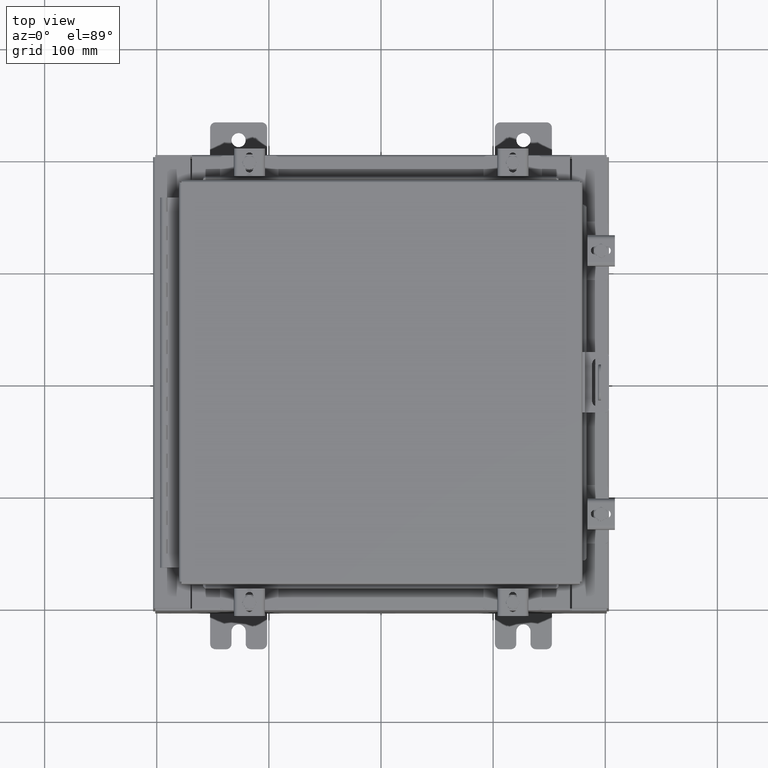
[diagram: clean part render]
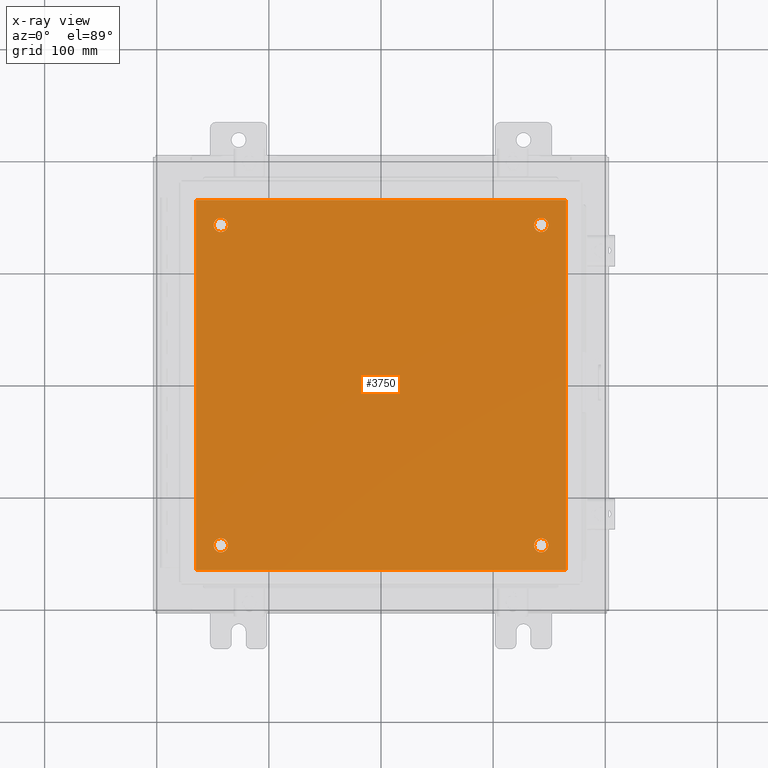
[diagram: x-ray — body ghosted, one internal face saturated and labeled with its STEP entity id]
A machine part, top view, then the same camera in x-ray: the body is ghosted and one INTERNAL B-rep face — a face not visible from any outside direction — is saturated and labeled: STEP entity #3750.
In plain terms, the highlighted planar face has unit normal (0, 0, -1).
Its self-contained STEP definition (entity closure, byte-faithful):
#249 = VECTOR ( 'NONE', #3048, 39.37007874015748100 ) ;
#473 = DIRECTION ( 'NONE',  ( -1.000000000000000000, 0.0000000000000000000, -0.0000000000000000000 ) ) ;
#474 = VECTOR ( 'NONE', #18459, 39.37007874015748100 ) ;
#612 = EDGE_LOOP ( 'NONE', ( #11835, #4664 ) ) ;
#912 = LINE ( 'NONE', #15066, #249 ) ;
#938 = CARTESIAN_POINT ( 'NONE',  ( -6.500000000000000000, -6.499999999999999100, -0.1039999999999999800 ) ) ;
#1072 = VERTEX_POINT ( 'NONE', #14655 ) ;
#1291 = EDGE_CURVE ( 'NONE', #19628, #23559, #19539, .T. ) ;
#1316 = DIRECTION ( 'NONE',  ( -0.0000000000000000000, -0.0000000000000000000, 1.000000000000000000 ) ) ;
#2065 = DIRECTION ( 'NONE',  ( -0.0000000000000000000, -0.0000000000000000000, 1.000000000000000000 ) ) ;
#2469 = DIRECTION ( 'NONE',  ( -0.0000000000000000000, -0.0000000000000000000, 1.000000000000000000 ) ) ;
#2476 = CARTESIAN_POINT ( 'NONE',  ( 5.625000000000002700, 5.625000000000000900, -0.1039999999999999800 ) ) ;
#2577 = CARTESIAN_POINT ( 'NONE',  ( 6.500000000000000000, -6.499999999999999100, -0.1039999999999999800 ) ) ;
#3048 = DIRECTION ( 'NONE',  ( 0.0000000000000000000, 1.000000000000000000, 0.0000000000000000000 ) ) ;
#3142 = AXIS2_PLACEMENT_3D ( 'NONE', #8850, #22898, #10863 ) ;
#3515 = CARTESIAN_POINT ( 'NONE',  ( 6.500000000000000000, 6.500000000000000900, -0.1039999999999999800 ) ) ;
#3750 = ADVANCED_FACE ( 'NONE', ( #24158, #8115, #23542, #9404, #12821 ), #8250, .T. ) ;
#4082 = EDGE_CURVE ( 'NONE', #4590, #19476, #21277, .T. ) ;
#4408 = DIRECTION ( 'NONE',  ( -0.0000000000000000000, -0.0000000000000000000, 1.000000000000000000 ) ) ;
#4481 = AXIS2_PLACEMENT_3D ( 'NONE', #11316, #14797, #17770 ) ;
#4492 = DIRECTION ( 'NONE',  ( -1.000000000000000000, 0.0000000000000000000, 0.0000000000000000000 ) ) ;
#4565 = AXIS2_PLACEMENT_3D ( 'NONE', #14080, #2065, #16075 ) ;
#4590 = VERTEX_POINT ( 'NONE', #6458 ) ;
#4664 = ORIENTED_EDGE ( 'NONE', *, *, #12536, .T. ) ;
#5412 = CARTESIAN_POINT ( 'NONE',  ( 5.875000000000000900, -5.625000000000000900, -0.1039999999999999800 ) ) ;
#5477 = ORIENTED_EDGE ( 'NONE', *, *, #23795, .T. ) ;
#5841 = EDGE_LOOP ( 'NONE', ( #25072, #18844 ) ) ;
#6172 = AXIS2_PLACEMENT_3D ( 'NONE', #13338, #1316, #15368 ) ;
#6458 = CARTESIAN_POINT ( 'NONE',  ( -5.375000000000002700, -5.625000000000000900, -0.1039999999999999800 ) ) ;
#6989 = ORIENTED_EDGE ( 'NONE', *, *, #1291, .F. ) ;
#7478 = VERTEX_POINT ( 'NONE', #20338 ) ;
#7532 = ORIENTED_EDGE ( 'NONE', *, *, #19572, .T. ) ;
#7763 = EDGE_LOOP ( 'NONE', ( #24467, #6989, #9137, #10722 ) ) ;
#7865 = CARTESIAN_POINT ( 'NONE',  ( -5.625000000000002700, 5.625000000000000900, -0.1039999999999999800 ) ) ;
#7974 = CIRCLE ( 'NONE', #20842, 0.2499999999999987000 ) ;
#8115 = FACE_BOUND ( 'NONE', #5841, .T. ) ;
#8118 = CARTESIAN_POINT ( 'NONE',  ( -5.875000000000001800, -5.625000000000000900, -0.1039999999999999800 ) ) ;
#8250 = PLANE ( 'NONE',  #25737 ) ;
#8461 = CARTESIAN_POINT ( 'NONE',  ( -6.500000000000000000, 6.500000000000000900, -0.1039999999999999800 ) ) ;
#8591 = EDGE_CURVE ( 'NONE', #1072, #23220, #19196, .T. ) ;
#8850 = CARTESIAN_POINT ( 'NONE',  ( -5.625000000000002700, -5.625000000000000900, -0.1039999999999999800 ) ) ;
#8874 = CARTESIAN_POINT ( 'NONE',  ( 5.875000000000000900, 5.625000000000000900, -0.1039999999999999800 ) ) ;
#8883 = VECTOR ( 'NONE', #24071, 39.37007874015748100 ) ;
#8972 = VERTEX_POINT ( 'NONE', #3515 ) ;
#9137 = ORIENTED_EDGE ( 'NONE', *, *, #13439, .F. ) ;
#9404 = FACE_BOUND ( 'NONE', #9674, .T. ) ;
#9466 = EDGE_CURVE ( 'NONE', #23559, #8972, #912, .T. ) ;
#9674 = EDGE_LOOP ( 'NONE', ( #23166, #14191 ) ) ;
#9884 = DIRECTION ( 'NONE',  ( -1.000000000000000000, 0.0000000000000000000, 0.0000000000000000000 ) ) ;
#10453 = DIRECTION ( 'NONE',  ( 0.0000000000000000000, 0.0000000000000000000, -1.000000000000000000 ) ) ;
#10722 = ORIENTED_EDGE ( 'NONE', *, *, #21913, .F. ) ;
#10863 = DIRECTION ( 'NONE',  ( -1.000000000000000000, 0.0000000000000000000, 0.0000000000000000000 ) ) ;
#10885 = VERTEX_POINT ( 'NONE', #8874 ) ;
#11085 = DIRECTION ( 'NONE',  ( -0.0000000000000000000, -1.000000000000000000, -0.0000000000000000000 ) ) ;
#11316 = CARTESIAN_POINT ( 'NONE',  ( -5.625000000000002700, -5.625000000000000900, -0.1039999999999999800 ) ) ;
#11491 = AXIS2_PLACEMENT_3D ( 'NONE', #2476, #16490, #4492 ) ;
#11835 = ORIENTED_EDGE ( 'NONE', *, *, #4082, .T. ) ;
#12121 = VERTEX_POINT ( 'NONE', #17251 ) ;
#12182 = CARTESIAN_POINT ( 'NONE',  ( -5.875000000000001800, 5.625000000000000900, -0.1039999999999999800 ) ) ;
#12379 = LINE ( 'NONE', #938, #22455 ) ;
#12536 = EDGE_CURVE ( 'NONE', #19476, #4590, #14619, .T. ) ;
#12662 = CARTESIAN_POINT ( 'NONE',  ( -6.500000000000000000, -6.499999999999999100, -0.1039999999999999800 ) ) ;
#12741 = CIRCLE ( 'NONE', #4565, 0.2499999999999998100 ) ;
#12821 = FACE_OUTER_BOUND ( 'NONE', #7763, .T. ) ;
#13043 = CARTESIAN_POINT ( 'NONE',  ( -6.500000000000000000, 6.500000000000000900, -0.1039999999999999800 ) ) ;
#13268 = EDGE_LOOP ( 'NONE', ( #5477, #7532 ) ) ;
#13338 = CARTESIAN_POINT ( 'NONE',  ( 5.625000000000002700, 5.625000000000000900, -0.1039999999999999800 ) ) ;
#13439 = EDGE_CURVE ( 'NONE', #14938, #19628, #12379, .T. ) ;
#14080 = CARTESIAN_POINT ( 'NONE',  ( -5.625000000000002700, 5.625000000000000900, -0.1039999999999999800 ) ) ;
#14129 = EDGE_CURVE ( 'NONE', #23220, #1072, #7974, .T. ) ;
#14191 = ORIENTED_EDGE ( 'NONE', *, *, #17015, .T. ) ;
#14478 = CARTESIAN_POINT ( 'NONE',  ( 5.625000000000002700, -5.625000000000000900, -0.1039999999999999800 ) ) ;
#14619 = CIRCLE ( 'NONE', #3142, 0.2499999999999998100 ) ;
#14655 = CARTESIAN_POINT ( 'NONE',  ( 5.375000000000003600, -5.625000000000000900, -0.1039999999999999800 ) ) ;
#14797 = DIRECTION ( 'NONE',  ( -0.0000000000000000000, -0.0000000000000000000, 1.000000000000000000 ) ) ;
#14938 = VERTEX_POINT ( 'NONE', #13043 ) ;
#15066 = CARTESIAN_POINT ( 'NONE',  ( 6.500000000000000000, -6.499999999999999100, -0.1039999999999999800 ) ) ;
#15368 = DIRECTION ( 'NONE',  ( -1.000000000000000000, 0.0000000000000000000, 0.0000000000000000000 ) ) ;
#15721 = CIRCLE ( 'NONE', #22473, 0.2499999999999998100 ) ;
#16024 = CIRCLE ( 'NONE', #11491, 0.2499999999999987000 ) ;
#16075 = DIRECTION ( 'NONE',  ( -1.000000000000000000, 0.0000000000000000000, 0.0000000000000000000 ) ) ;
#16092 = CIRCLE ( 'NONE', #6172, 0.2499999999999987000 ) ;
#16411 = CARTESIAN_POINT ( 'NONE',  ( 5.625000000000002700, -5.625000000000000900, -0.1039999999999999800 ) ) ;
#16480 = DIRECTION ( 'NONE',  ( -1.000000000000000000, 0.0000000000000000000, 0.0000000000000000000 ) ) ;
#16490 = DIRECTION ( 'NONE',  ( -0.0000000000000000000, -0.0000000000000000000, 1.000000000000000000 ) ) ;
#16507 = LINE ( 'NONE', #8461, #474 ) ;
#17015 = EDGE_CURVE ( 'NONE', #22895, #7478, #12741, .T. ) ;
#17251 = CARTESIAN_POINT ( 'NONE',  ( 5.375000000000003600, 5.625000000000000900, -0.1039999999999999800 ) ) ;
#17770 = DIRECTION ( 'NONE',  ( -1.000000000000000000, 0.0000000000000000000, 0.0000000000000000000 ) ) ;
#18459 = DIRECTION ( 'NONE',  ( -1.000000000000000000, -0.0000000000000000000, -0.0000000000000000000 ) ) ;
#18470 = DIRECTION ( 'NONE',  ( -1.000000000000000000, 0.0000000000000000000, 0.0000000000000000000 ) ) ;
#18844 = ORIENTED_EDGE ( 'NONE', *, *, #8591, .T. ) ;
#19196 = CIRCLE ( 'NONE', #24017, 0.2499999999999987000 ) ;
#19381 = EDGE_CURVE ( 'NONE', #7478, #22895, #15721, .T. ) ;
#19476 = VERTEX_POINT ( 'NONE', #8118 ) ;
#19539 = LINE ( 'NONE', #25082, #8883 ) ;
#19572 = EDGE_CURVE ( 'NONE', #12121, #10885, #16024, .T. ) ;
#19628 = VERTEX_POINT ( 'NONE', #12662 ) ;
#20338 = CARTESIAN_POINT ( 'NONE',  ( -5.375000000000002700, 5.625000000000000900, -0.1039999999999999800 ) ) ;
#20842 = AXIS2_PLACEMENT_3D ( 'NONE', #14478, #2469, #16480 ) ;
#21056 = CARTESIAN_POINT ( 'NONE',  ( 0.0000000000000000000, 0.0000000000000000000, -0.1039999999999999800 ) ) ;
#21277 = CIRCLE ( 'NONE', #4481, 0.2499999999999998100 ) ;
#21891 = DIRECTION ( 'NONE',  ( -0.0000000000000000000, -0.0000000000000000000, 1.000000000000000000 ) ) ;
#21913 = EDGE_CURVE ( 'NONE', #8972, #14938, #16507, .T. ) ;
#22455 = VECTOR ( 'NONE', #11085, 39.37007874015748100 ) ;
#22473 = AXIS2_PLACEMENT_3D ( 'NONE', #7865, #21891, #9884 ) ;
#22895 = VERTEX_POINT ( 'NONE', #12182 ) ;
#22898 = DIRECTION ( 'NONE',  ( -0.0000000000000000000, -0.0000000000000000000, 1.000000000000000000 ) ) ;
#23166 = ORIENTED_EDGE ( 'NONE', *, *, #19381, .T. ) ;
#23220 = VERTEX_POINT ( 'NONE', #5412 ) ;
#23542 = FACE_BOUND ( 'NONE', #13268, .T. ) ;
#23559 = VERTEX_POINT ( 'NONE', #2577 ) ;
#23795 = EDGE_CURVE ( 'NONE', #10885, #12121, #16092, .T. ) ;
#24017 = AXIS2_PLACEMENT_3D ( 'NONE', #16411, #4408, #18470 ) ;
#24071 = DIRECTION ( 'NONE',  ( 1.000000000000000000, 0.0000000000000000000, 0.0000000000000000000 ) ) ;
#24158 = FACE_BOUND ( 'NONE', #612, .T. ) ;
#24467 = ORIENTED_EDGE ( 'NONE', *, *, #9466, .F. ) ;
#25072 = ORIENTED_EDGE ( 'NONE', *, *, #14129, .T. ) ;
#25082 = CARTESIAN_POINT ( 'NONE',  ( -6.500000000000000000, -6.499999999999999100, -0.1039999999999999800 ) ) ;
#25737 = AXIS2_PLACEMENT_3D ( 'NONE', #21056, #10453, #473 ) ;